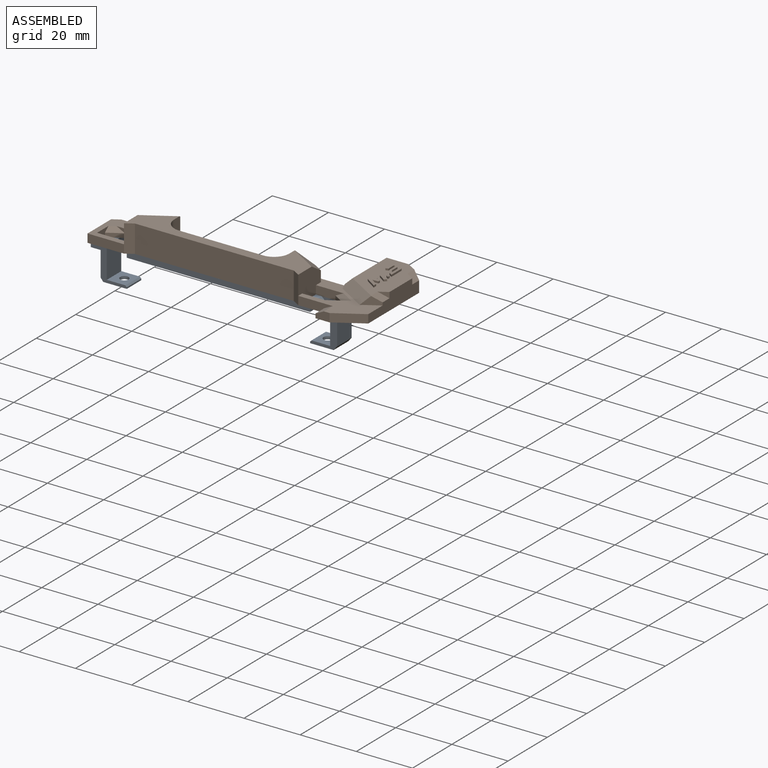
[diagram: assembled view]
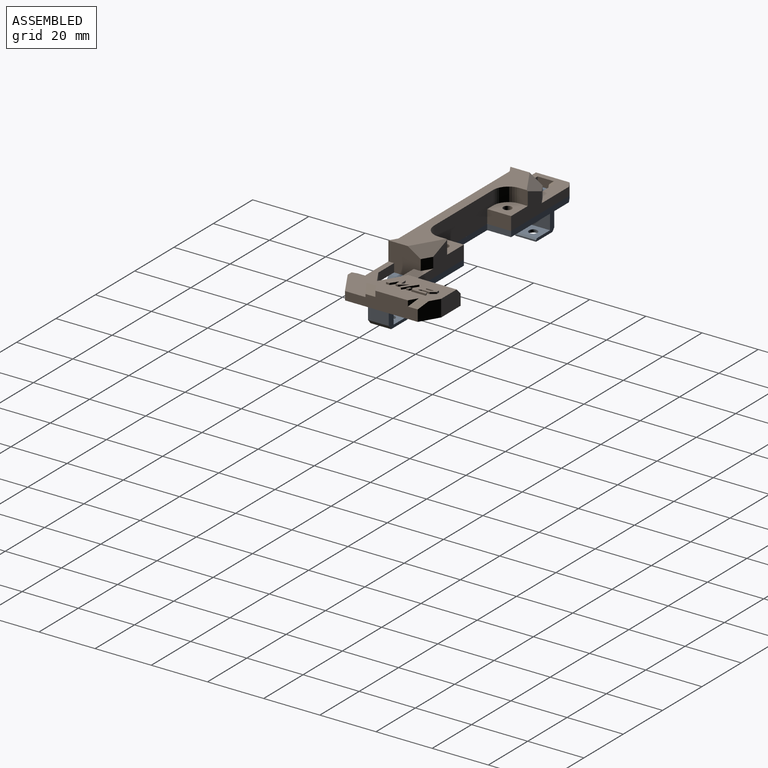
[diagram: assembled view, second angle]
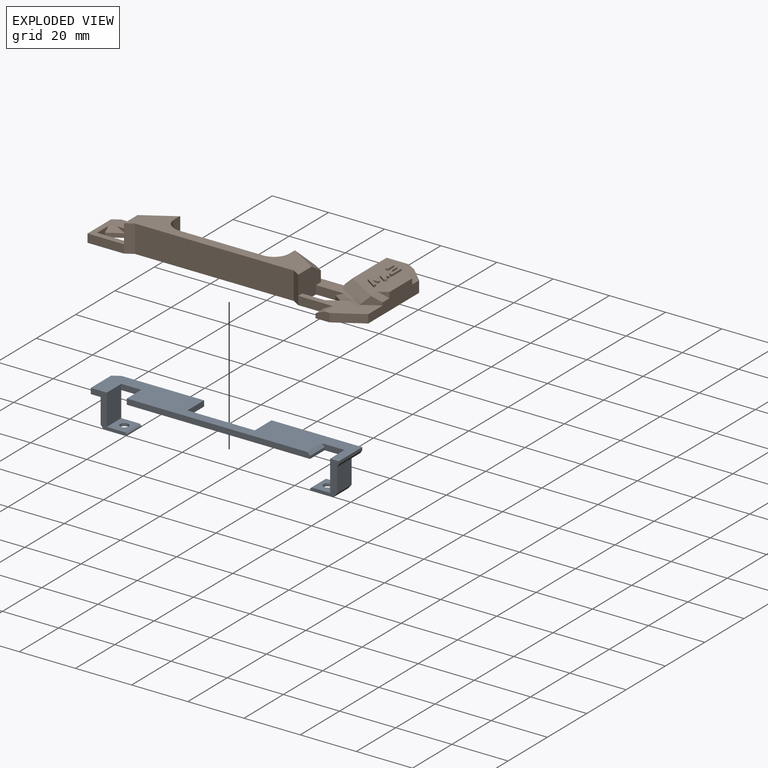
[diagram: exploded view]
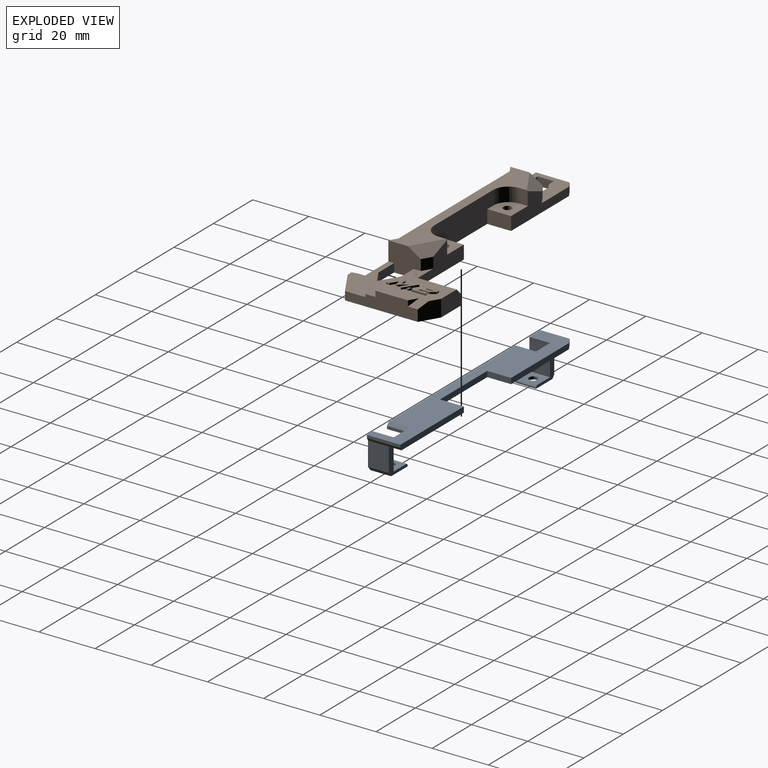
[diagram: exploded view, second angle]
ASSEMBLY  parts=2 mates=3
PART A: 45 faces, bbox 88.3x12x11.9 mm
  f0: plane 24x2mm, normal (0,0,1), area 48mm2, adj f1,f2,f11,f12
  f1: plane 8.49x2mm, normal (-1,0,0), area 17mm2, adj f0,f11,f12,f23
  f2: plane 8.49x2mm, normal (1,0,0), area 17mm2, adj f0,f11,f12,f36
  f3: plane 12.02x9.63mm, normal (0,0,-1), area 36.1mm2, adj f12,f15,f17,f22,f24,f25,f26,f27
  f4: plane 10.36x2mm, normal (-1,0,0), area 20.7mm2, adj f11,f12,f34,f35
  f5: plane 7.37x1.11mm, normal (-0.77,0.64,0), area 10.7mm2, adj f8,f9,f30,f38
  f6: plane 7.37x0.5mm, normal (1,0,0), area 3.7mm2, adj f7,f8,f9,f30
  f7: plane 7.37x0.5mm, normal (0.71,-0.71,0), area 5.2mm2, adj f6,f8,f30,f42
  f8: plane 10.02x9.3mm, normal (0,0,-1), area 28.3mm2, adj f5,f6,f7,f9,f31,f34,f38,f42
  f9: plane 8.38x7.37mm, normal (0,1,0), area 54.7mm2, adj f5,f6,f8,f10,f30,f43
  f10: cylinder r=1.5mm len=3mm, axis (0,1,0), area 4.7mm2, adj f9,f42,f43
  f11: plane 87.7x11.92mm, normal (0,1,0), area 697.2mm2, adj f0,f1,f2,f4,f16,f19,f21,f23
  f12: plane 87.7x11.92mm, normal (0,-1,0), area 726.7mm2, adj f0,f1,f2,f3,f4,f14,f19,f20
  f13: plane 2x0.59mm, normal (0,0,1), area 0.9mm2, adj f14,f16,f18,f23
  f14: plane 11.92x0.59mm, normal (0,-1,0), area 7mm2, adj f12,f13,f15,f18
  f15: plane 2x0.59mm, normal (0,0,-1), area 0.9mm2, adj f3,f14,f16,f18
  f16: plane 11.92x1mm, normal (0.86,0.51,0), area 13.8mm2, adj f11,f13,f15,f17,f18
  f17: plane 8.52x7.37mm, normal (1,0,0), area 62.8mm2, adj f3,f16,f25,f28
  f18: plane 11.92x1mm, normal (1,0,0), area 11.9mm2, adj f13,f14,f15,f16
  f19: plane 8.13x2mm, normal (0,0,-1), area 14.8mm2, adj f11,f12,f20,f21,f22
  f20: plane 7.37x1mm, normal (0.71,-0.71,0), area 10.4mm2, adj f12,f19,f21,f37
  f21: plane 7.37x1mm, normal (1,0,0), area 7.4mm2, adj f11,f19,f20,f37
  f22: plane 10.52x7.37mm, normal (-1,0,0), area 77.6mm2, adj f3,f12,f19,f28,f40
  f23: plane 31.7x2mm, normal (0,0,1), area 63.4mm2, adj f1,f11,f12,f13
  f24: plane 8.38x7.37mm, normal (0,1,0), area 54.7mm2, adj f3,f25,f26,f28,f29,f44
  f25: plane 7.37x1.5mm, normal (0.77,0.64,0), area 14.4mm2, adj f3,f17,f24,f28
  f26: plane 7.37x0.5mm, normal (-1,0,0), area 3.7mm2, adj f3,f24,f27,f28
  f27: plane 7.37x0.5mm, normal (-0.71,-0.71,0), area 5.2mm2, adj f3,f26,f28,f41
  f28: plane 10.02x9.63mm, normal (0,0,1), area 31.1mm2, adj f11,f17,f22,f24,f25,f26,f27,f40
  f29: cylinder r=1.5mm len=3mm, axis (0,1,0), area 4.7mm2, adj f24,f41,f44
  f30: plane 10.02x9.3mm, normal (0,0,1), area 28.3mm2, adj f5,f6,f7,f9,f11,f31,f38,f42
  f31: plane 11.02x7.37mm, normal (1,0,0), area 81.3mm2, adj f8,f12,f30,f33,f34,f42
  f32: plane 7.37x2mm, normal (-1,0,0), area 14.7mm2, adj f11,f12,f33,f37
  f33: plane 7.13x2mm, normal (0,0,-1), area 14.3mm2, adj f11,f12,f31,f32
  f34: plane 5.71x2mm, normal (0,0,-1), area 11.4mm2, adj f4,f8,f11,f12,f31,f39
  f35: plane 2.58x2mm, normal (-0.51,0,0.86), area 6mm2, adj f4,f11,f12,f36
  f36: plane 29.42x2mm, normal (0,0,1), area 58.8mm2, adj f2,f11,f12,f35
  f37: plane 65.24x2mm, normal (0,0,-1), area 130mm2, adj f11,f12,f20,f21,f32
  f38: plane 8.91x7.37mm, normal (-1,0,0), area 65.7mm2, adj f5,f8,f30,f39
  f39: plane 7.37x0.32mm, normal (0,1,0), area 2.4mm2, adj f11,f34,f38
  f40: plane 7.37x0.5mm, normal (-1,0,0), area 3.7mm2, adj f3,f22,f28,f41
  f41: plane 7.37x6.63mm, normal (0,-1,0), area 41.8mm2, adj f3,f27,f28,f29,f40,f44
  f42: plane 7.37x6.63mm, normal (0,-1,0), area 41.8mm2, adj f7,f8,f10,f30,f31,f43
  f43: cylinder r=1.5mm len=3mm, axis (0,1,0), area 4.7mm2, adj f9,f10,f42
  f44: cylinder r=1.5mm len=3mm, axis (0,1,0), area 4.7mm2, adj f24,f29,f41
PART B: 99 faces, bbox 99x35.6x9.8 mm
  f0: plane 99x25.77mm, normal (0,0,-1), area 1046.1mm2, adj f3,f4,f5,f6,f7,f8,f9,f13
  f1: plane 5x2.99mm, normal (1,0,0), area 14.9mm2, adj f2,f82,f83,f86,f90,f96
  f2: cylinder r=5.5mm len=5.5mm, axis (0,0,-1), area 43.2mm2, adj f1,f3,f82,f96
  f3: plane 30x9.78mm, normal (0,1,0), area 264.8mm2, adj f0,f2,f82,f92,f93,f94,f95,f96
  f4: cylinder r=1.5mm len=4.78mm, axis (0,0,1), area 22.5mm2, adj f0,f94,f97
  f5: cylinder r=1.5mm len=4.78mm, axis (0,0,1), area 22.5mm2, adj f0,f96,f98
  f6: plane 11.5x9.78mm, normal (1,0,0), area 83mm2, adj f0,f15,f19,f72,f79,f80,f82,f88
  f7: plane 11.5x9.78mm, normal (-1,0,0), area 83mm2, adj f0,f26,f27,f70,f78,f81,f82,f89
  f8: plane 19.58x4mm, normal (-1,0,0), area 71.6mm2, adj f0,f9,f11,f23,f69,f80,f85
  f9: plane 16.29x9.82mm, normal (0,0,-1), area 147.5mm2, adj f0,f8,f10,f30,f69
  f10: plane 6.42x6mm, normal (0.52,0.86,0), area 41.5mm2, adj f9,f12,f30,f32,f69
  f11: plane 18.42x2mm, normal (-0.71,0,0.71), area 50.5mm2, adj f8,f12,f23,f69
  f12: plane 24.07x14.29mm, normal (0,0,1), area 239.2mm2, adj f10,f11,f21,f22,f23,f30,f31,f32
  f13: plane 3x2.58mm, normal (-0.51,0.86,0), area 9mm2, adj f0,f24,f81,f86
  f14: plane 13x3mm, normal (0,-1,0), area 39mm2, adj f0,f24,f70,f81
  f15: plane 8x3mm, normal (0,1,0), area 24mm2, adj f0,f6,f16,f80
  f16: plane 6.75x4.06mm, normal (-0.52,0.86,0), area 19.8mm2, adj f0,f15,f17,f18,f80
  f17: plane 6.37x3.82mm, normal (-0.51,-0.86,0), area 11.1mm2, adj f0,f16,f18,f19
  f18: plane 7.82x3.82mm, normal (-0.36,-0.61,0.71), area 13.9mm2, adj f16,f17,f19,f80
  f19: plane 9.84x3mm, normal (0,-1,0), area 23mm2, adj f0,f6,f17,f18,f80
  f20: plane 5.78x3.47mm, normal (0.52,-0.86,0), area 11.6mm2, adj f22,f23,f30,f80
  f21: plane 3x2mm, normal (0.52,-0.86,0), area 3.5mm2, adj f12,f22,f30
  f22: plane 5.25x3mm, normal (0.55,0,0.83), area 12.6mm2, adj f12,f20,f21,f23,f30
  f23: plane 13.37x8.61mm, normal (-0.36,-0.61,0.71), area 55.9mm2, adj f8,f11,f12,f20,f22,f80
  f24: plane 12x3mm, normal (-1,0,0), area 36mm2, adj f0,f13,f14,f81
  f25: plane 5.75x3mm, normal (1,0,0), area 13.3mm2, adj f0,f26,f28,f29,f81
  f26: plane 11x3mm, normal (0,1,0), area 33mm2, adj f0,f7,f25,f81
  f27: plane 8.91x3mm, normal (0,-1,0), area 20.2mm2, adj f0,f7,f28,f29,f81
  f28: plane 5x3mm, normal (0.52,-0.86,0), area 8.7mm2, adj f0,f25,f27,f29
  f29: plane 5x3mm, normal (0.36,-0.61,0.71), area 8.8mm2, adj f25,f27,f28,f81
  f30: plane 25.89x6mm, normal (1,0,0), area 119.4mm2, adj f0,f9,f10,f12,f20,f21,f22,f31
  f31: plane 3x2mm, normal (0.52,0.86,0), area 3.5mm2, adj f12,f30,f32
  f32: plane 5.3x3mm, normal (0.55,0,0.83), area 12.6mm2, adj f10,f12,f30,f31
  f33: plane 9.02x4.77mm, normal (0,0,1), area 16.6mm2, adj f56,f57,f58,f59,f60,f61,f62,f63
  f34: plane 1.51x0.9mm, normal (0,0,1), area 0.8mm2, adj f36,f37,f38,f39
  f35: plane 7.11x4.06mm, normal (0,0,1), area 13.3mm2, adj f40,f41,f42,f43,f44,f45,f46,f47
  f36: plane 0.9x0.65mm, normal (-1,0,0), area 0.6mm2, adj f12,f34,f37,f39
  f37: plane 0.9x0.65mm, normal (-0.56,-0.83,0), area 0.7mm2, adj f12,f34,f36,f38
  f38: plane 0.9x0.65mm, normal (1,0,0), area 0.6mm2, adj f12,f34,f37,f39
  f39: plane 0.9x0.65mm, normal (0.56,0.83,0), area 0.7mm2, adj f12,f34,f36,f38
  f40: plane 1.25x0.84mm, normal (-0.56,-0.83,0), area 1mm2, adj f12,f35,f41,f55
  f41: plane 1.69x1.2mm, normal (-0.82,-0.58,0), area 1.4mm2, adj f12,f35,f40,f42
  f42: plane 2.68x0.65mm, normal (-1,0,0), area 1.8mm2, adj f12,f35,f41,f43
  f43: plane 0.65x0.55mm, normal (-0.83,-0.56,0), area 0.4mm2, adj f12,f35,f42,f44
  f44: plane 0.65x0.34mm, normal (0.18,-0.98,0), area 0.2mm2, adj f12,f35,f43,f45
  f45: plane 2.67x0.65mm, normal (1,0,0), area 1.7mm2, adj f12,f35,f44,f46
  f46: plane 0.91x0.65mm, normal (0.3,-0.95,0), area 0.6mm2, adj f12,f35,f45,f47
  f47: plane 4.29x0.65mm, normal (-1,0,0), area 2.8mm2, adj f12,f35,f46,f48
  f48: plane 1.25x0.65mm, normal (-0.06,1,0), area 0.8mm2, adj f12,f35,f47,f49
  f49: plane 1.7x1.2mm, normal (0.82,0.58,0), area 1.4mm2, adj f12,f35,f48,f50
  f50: plane 2.8x0.65mm, normal (1,0,0), area 1.8mm2, adj f12,f35,f49,f51
  f51: plane 0.65x0.54mm, normal (0.82,0.57,0), area 0.4mm2, adj f12,f35,f50,f52
  f52: plane 0.65x0.34mm, normal (0.56,0.83,0), area 0.3mm2, adj f12,f35,f51,f53
  f53: plane 3.07x0.65mm, normal (-1,0,0), area 2mm2, adj f12,f35,f52,f54
  f54: plane 0.91x0.65mm, normal (-0.31,0.95,0), area 0.6mm2, adj f12,f35,f53,f55
  f55: plane 5.21x0.65mm, normal (1,0,0), area 3.4mm2, adj f12,f35,f40,f54
  f56: plane 2.6x1.75mm, normal (-0.56,-0.83,0), area 2mm2, adj f12,f33,f57,f68
  f57: plane 2.94x2.09mm, normal (0.81,0.58,0), area 2.4mm2, adj f12,f33,f56,f58
  f58: plane 0.79x0.65mm, normal (1,0,0), area 0.5mm2, adj f12,f33,f57,f59
  f59: plane 2.09x0.65mm, normal (0.05,-1,0), area 1.4mm2, adj f12,f33,f58,f60
  f60: plane 2.6x1.75mm, normal (0.56,0.83,0), area 2mm2, adj f12,f33,f59,f61
  f61: plane 1.23x0.65mm, normal (1,0,0), area 0.8mm2, adj f12,f33,f60,f62
  f62: plane 4.06x2.74mm, normal (-0.56,-0.83,0), area 3.2mm2, adj f12,f33,f61,f63
  f63: plane 1.38x0.65mm, normal (-1,0,0), area 0.9mm2, adj f12,f33,f62,f64
  f64: plane 2.42x0.65mm, normal (-0.05,1,0), area 1.6mm2, adj f12,f33,f63,f65
  f65: plane 3.39x2.42mm, normal (-0.81,-0.58,0), area 2.7mm2, adj f12,f33,f64,f66
  f66: plane 1.39x0.65mm, normal (-1,0,0), area 0.9mm2, adj f12,f33,f65,f67
  f67: plane 4.77x3.22mm, normal (0.56,0.83,0), area 3.8mm2, adj f12,f33,f66,f68
  f68: plane 0.75x0.7mm, normal (0.73,-0.68,0), area 0.7mm2, adj f12,f33,f56,f67
  f69: plane 9.86x6mm, normal (0,1,0), area 57.2mm2, adj f8,f9,f10,f11,f12
  f70: plane 9.78x2.73mm, normal (0.51,-0.86,0), area 31.1mm2, adj f0,f7,f14,f71,f82
  f71: plane 56.55x9.78mm, normal (0,-1,0), area 553.3mm2, adj f0,f70,f72,f82
  f72: plane 9.78x2.73mm, normal (-0.51,-0.86,0), area 31.1mm2, adj f0,f6,f71,f77,f82
  f73: plane 4.5x1.5mm, normal (-1,0,0), area 6.7mm2, adj f0,f74,f75,f77
  f74: plane 5x3mm, normal (0,-1,0), area 12.7mm2, adj f0,f73,f75,f76,f80
  f75: plane 4.5x3mm, normal (-0.45,0,0.89), area 15.1mm2, adj f73,f74,f77,f80
  f76: plane 9.71x5.84mm, normal (0.52,-0.86,0), area 34mm2, adj f0,f30,f74,f80
  f77: plane 12.29x3mm, normal (0,-1,0), area 30.1mm2, adj f0,f72,f73,f75,f80
  f78: plane 3.82x3.42mm, normal (-0.51,0.86,0), area 15.2mm2, adj f7,f81,f83,f86,f89,f90
  f79: plane 3.82x3.42mm, normal (0.51,0.86,0), area 15.2mm2, adj f6,f80,f84,f85,f87,f88
  f80: plane 27.42x18.05mm, normal (0,0,1), area 177.7mm2, adj f6,f8,f15,f16,f18,f19,f20,f23
  f81: plane 16.42x13.55mm, normal (0,0,1), area 102mm2, adj f7,f13,f14,f24,f25,f26,f27,f29
  f82: plane 62x13.19mm, normal (0,0,1), area 334.3mm2, adj f1,f2,f3,f6,f7,f70,f71,f72
  f83: plane 10.5x6.66mm, normal (-0.31,0.51,0.8), area 41.6mm2, adj f1,f78,f82,f89,f90
  f84: plane 10.5x6.66mm, normal (0.31,0.51,0.8), area 41.6mm2, adj f79,f82,f87,f88,f91
  f85: plane 26.71x7.55mm, normal (0,1,0), area 117.9mm2, adj f0,f8,f79,f80,f87,f91,f93,f94
  f86: plane 29.42x7.55mm, normal (0,1,0), area 126mm2, adj f0,f1,f13,f78,f81,f90,f95,f96
  f87: plane 7.08x4.73mm, normal (0,1,0), area 14.2mm2, adj f79,f84,f85,f91
  f88: plane 4.96x4.61mm, normal (1,0,0), area 9.2mm2, adj f6,f79,f84
  f89: plane 4.96x4.61mm, normal (-1,0,0), area 9.2mm2, adj f7,f78,f83
  f90: plane 7.08x4.73mm, normal (0,1,0), area 14.2mm2, adj f1,f78,f83,f86
  f91: plane 5x2.99mm, normal (-1,0,0), area 14.9mm2, adj f82,f84,f85,f87,f92,f94
  f92: cylinder r=5.5mm len=5.5mm, axis (0,0,-1), area 43.2mm2, adj f3,f82,f91,f94
  f93: plane 8.49x4.78mm, normal (-1,0,0), area 40.6mm2, adj f0,f3,f85,f94
  f94: plane 8.5x8.49mm, normal (0,0,1), area 58.6mm2, adj f3,f4,f85,f91,f92,f93,f97
  f95: plane 8.49x4.78mm, normal (1,0,0), area 40.6mm2, adj f0,f3,f86,f96
  f96: plane 8.5x8.49mm, normal (0,0,1), area 58.6mm2, adj f1,f2,f3,f5,f86,f95,f98
  f97: cylinder r=1.5mm len=4.78mm, axis (0,0,1), area 22.5mm2, adj f0,f4,f94
  f98: cylinder r=1.5mm len=4.78mm, axis (0,0,1), area 22.5mm2, adj f0,f5,f96
PLACE A rot(axis=(-1,0,0),90deg) t=(-41.26,-22.87,61.68)mm
PLACE B t=(-41.26,-29,19.98)mm
MATE planar A.f4 <-> B.f24  axis (-1,0,0) through (-90.57,-17.68,18.98)mm
MATE planar A.f12 <-> B.f0  axis (0,0,1) through (-47.22,-17.05,19.98)mm
MATE planar B.f86 <-> A.f36  axis (0,1,0) through (-71.45,-10.95,22.34)mm
